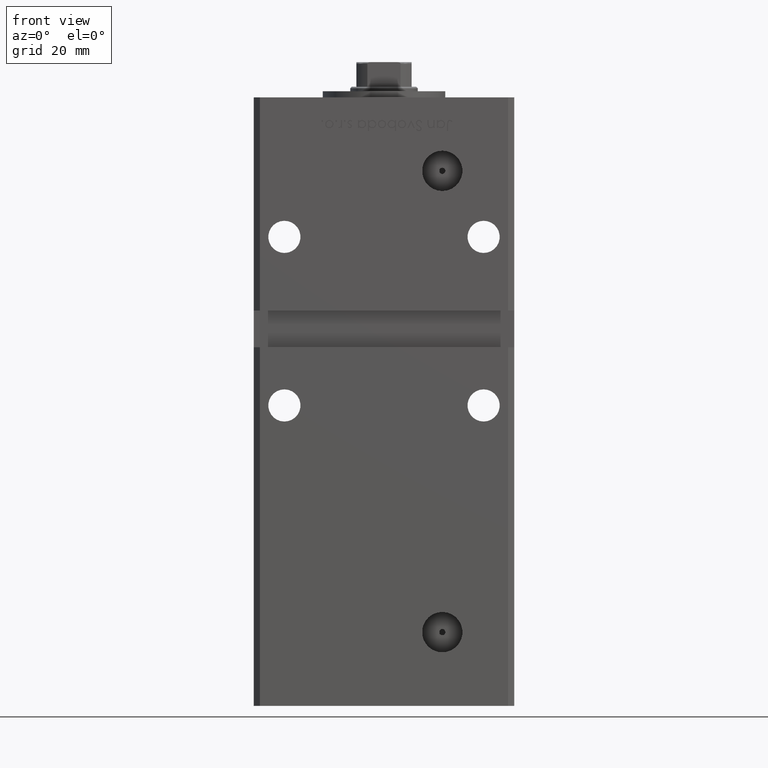
[diagram: clean part render]
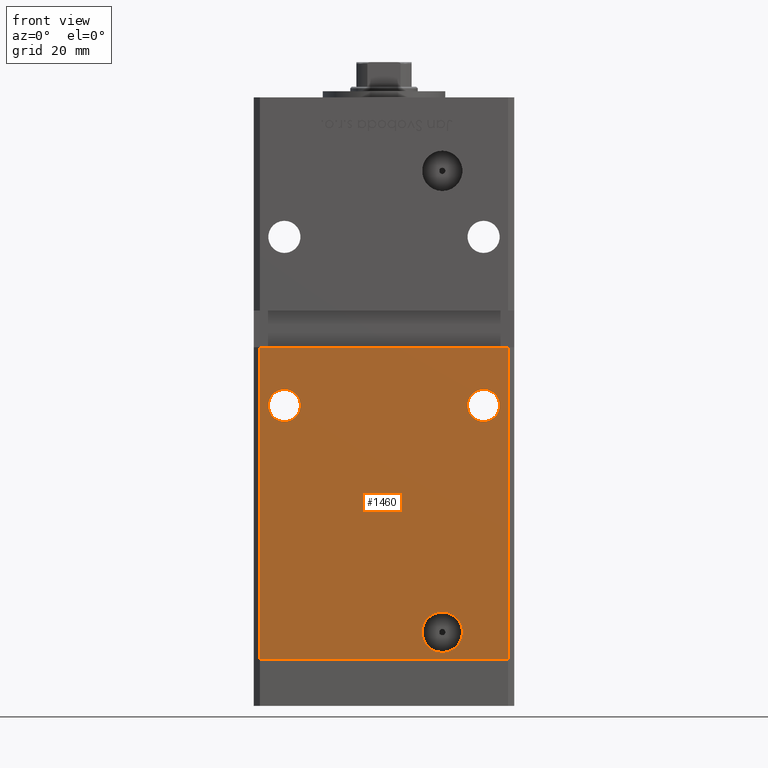
[diagram: same view with one face highlighted and labeled with its STEP entity id]
A machine part, front view. The second image highlights one B-rep face of the part: STEP entity #1460.
In plain terms, the highlighted planar face has unit normal (0, 1, 0).
Its self-contained STEP definition (entity closure, byte-faithful):
#700 = ORIENTED_EDGE ( 'NONE', *, *, #21728, .T. ) ;
#1460 = ADVANCED_FACE ( 'NONE', ( #46306, #50356, #21546, #21802 ), #43056, .F. ) ;
#1717 = AXIS2_PLACEMENT_3D ( 'NONE', #14498, #19318, #7203 ) ;
#2702 = AXIS2_PLACEMENT_3D ( 'NONE', #16466, #47952, #35840 ) ;
#3083 = DIRECTION ( 'NONE',  ( 0.000000000000000000, 1.000000000000000000, 0.000000000000000000 ) ) ;
#3237 = CARTESIAN_POINT ( 'NONE',  ( -40.49999999999998579, -37.50000000000000711, 168.5000000000000000 ) ) ;
#4194 = EDGE_LOOP ( 'NONE', ( #24357, #26755, #700, #8075 ) ) ;
#4233 = VERTEX_POINT ( 'NONE', #8508 ) ;
#4591 = VERTEX_POINT ( 'NONE', #40711 ) ;
#4964 = AXIS2_PLACEMENT_3D ( 'NONE', #52591, #3083, #19236 ) ;
#5800 = EDGE_LOOP ( 'NONE', ( #22836, #30534 ) ) ;
#6203 = DIRECTION ( 'NONE',  ( 0.000000000000000000, 1.000000000000000000, 0.000000000000000000 ) ) ;
#7203 = DIRECTION ( 'NONE',  ( 0.000000000000000000, 0.000000000000000000, 1.000000000000000000 ) ) ;
#7235 = CIRCLE ( 'NONE', #34752, 5.250000000000004441 ) ;
#7658 = VERTEX_POINT ( 'NONE', #15648 ) ;
#8075 = ORIENTED_EDGE ( 'NONE', *, *, #47325, .T. ) ;
#8508 = CARTESIAN_POINT ( 'NONE',  ( -32.50000000000000000, -37.50000000000000711, 88.25000000000002842 ) ) ;
#8854 = CARTESIAN_POINT ( 'NONE',  ( -40.49999999999998579, -37.50000000000000711, 0.000000000000000000 ) ) ;
#9460 = VERTEX_POINT ( 'NONE', #29432 ) ;
#10264 = DIRECTION ( 'NONE',  ( -0.000000000000000000, -0.000000000000000000, -1.000000000000000000 ) ) ;
#10277 = CIRCLE ( 'NONE', #23127, 5.249999999999991118 ) ;
#11157 = VERTEX_POINT ( 'NONE', #11480 ) ;
#11480 = CARTESIAN_POINT ( 'NONE',  ( 18.99999999999998934, -37.50000000000000711, 2.420000000000001261 ) ) ;
#12331 = CIRCLE ( 'NONE', #19207, 6.579999999999998295 ) ;
#13601 = CARTESIAN_POINT ( 'NONE',  ( 32.50000000000000000, -37.50000000000000711, 88.25000000000001421 ) ) ;
#13688 = EDGE_CURVE ( 'NONE', #7658, #4233, #7235, .T. ) ;
#13848 = CIRCLE ( 'NONE', #2702, 6.579999999999998295 ) ;
#14019 = DIRECTION ( 'NONE',  ( 0.000000000000000000, -0.000000000000000000, 1.000000000000000000 ) ) ;
#14026 = VERTEX_POINT ( 'NONE', #21424 ) ;
#14498 = CARTESIAN_POINT ( 'NONE',  ( 32.50000000000000000, -37.50000000000000711, 83.00000000000001421 ) ) ;
#15648 = CARTESIAN_POINT ( 'NONE',  ( -32.50000000000000000, -37.50000000000000711, 77.75000000000001421 ) ) ;
#16466 = CARTESIAN_POINT ( 'NONE',  ( 18.99999999999998934, -37.50000000000000711, 9.000000000000000000 ) ) ;
#16533 = DIRECTION ( 'NONE',  ( 0.000000000000000000, 0.000000000000000000, 1.000000000000000000 ) ) ;
#17102 = ORIENTED_EDGE ( 'NONE', *, *, #26425, .T. ) ;
#17735 = DIRECTION ( 'NONE',  ( 0.000000000000000000, 0.000000000000000000, 1.000000000000000000 ) ) ;
#17803 = CARTESIAN_POINT ( 'NONE',  ( 32.50000000000000000, -37.50000000000000711, 77.75000000000002842 ) ) ;
#18595 = CARTESIAN_POINT ( 'NONE',  ( -40.49999999999998579, -37.50000000000000711, 0.000000000000000000 ) ) ;
#18696 = CARTESIAN_POINT ( 'NONE',  ( 40.49999999999998579, -37.50000000000000711, 168.5000000000000000 ) ) ;
#19207 = AXIS2_PLACEMENT_3D ( 'NONE', #37269, #29193, #32710 ) ;
#19236 = DIRECTION ( 'NONE',  ( 0.000000000000000000, 0.000000000000000000, 1.000000000000000000 ) ) ;
#19318 = DIRECTION ( 'NONE',  ( 0.000000000000000000, 1.000000000000000000, 0.000000000000000000 ) ) ;
#19385 = LINE ( 'NONE', #3237, #21939 ) ;
#20554 = DIRECTION ( 'NONE',  ( 0.000000000000000000, 1.000000000000000000, 0.000000000000000000 ) ) ;
#21424 = CARTESIAN_POINT ( 'NONE',  ( 40.49999999999998579, -37.50000000000000711, 102.0000000000000142 ) ) ;
#21546 = FACE_BOUND ( 'NONE', #5800, .T. ) ;
#21728 = EDGE_CURVE ( 'NONE', #23324, #41255, #19385, .T. ) ;
#21802 = FACE_OUTER_BOUND ( 'NONE', #4194, .T. ) ;
#21939 = VECTOR ( 'NONE', #10264, 1000.000000000000000 ) ;
#22836 = ORIENTED_EDGE ( 'NONE', *, *, #38675, .F. ) ;
#23127 = AXIS2_PLACEMENT_3D ( 'NONE', #37505, #20554, #16533 ) ;
#23324 = VERTEX_POINT ( 'NONE', #41832 ) ;
#24037 = CIRCLE ( 'NONE', #1717, 5.249999999999991118 ) ;
#24357 = ORIENTED_EDGE ( 'NONE', *, *, #37245, .F. ) ;
#25953 = EDGE_LOOP ( 'NONE', ( #17102, #35647 ) ) ;
#26226 = LINE ( 'NONE', #18696, #34431 ) ;
#26425 = EDGE_CURVE ( 'NONE', #4233, #7658, #41010, .T. ) ;
#26755 = ORIENTED_EDGE ( 'NONE', *, *, #26854, .F. ) ;
#26854 = EDGE_CURVE ( 'NONE', #23324, #14026, #43590, .T. ) ;
#27496 = AXIS2_PLACEMENT_3D ( 'NONE', #47364, #6203, #14019 ) ;
#29193 = DIRECTION ( 'NONE',  ( 0.000000000000000000, -1.000000000000000000, 0.000000000000000000 ) ) ;
#29432 = CARTESIAN_POINT ( 'NONE',  ( 40.49999999999998579, -37.50000000000000711, 0.000000000000000000 ) ) ;
#29927 = VERTEX_POINT ( 'NONE', #13601 ) ;
#30534 = ORIENTED_EDGE ( 'NONE', *, *, #50384, .F. ) ;
#30702 = DIRECTION ( 'NONE',  ( 1.000000000000000000, 0.000000000000000000, 0.000000000000000000 ) ) ;
#32710 = DIRECTION ( 'NONE',  ( 0.000000000000000000, 0.000000000000000000, -1.000000000000000000 ) ) ;
#33296 = VECTOR ( 'NONE', #47899, 1000.000000000000000 ) ;
#34371 = EDGE_CURVE ( 'NONE', #29927, #45041, #10277, .T. ) ;
#34431 = VECTOR ( 'NONE', #43694, 1000.000000000000000 ) ;
#34752 = AXIS2_PLACEMENT_3D ( 'NONE', #37907, #42734, #17735 ) ;
#35111 = EDGE_CURVE ( 'NONE', #45041, #29927, #24037, .T. ) ;
#35522 = CARTESIAN_POINT ( 'NONE',  ( -42.49999999999998579, -37.50000000000000711, 102.0000000000000142 ) ) ;
#35647 = ORIENTED_EDGE ( 'NONE', *, *, #13688, .T. ) ;
#35840 = DIRECTION ( 'NONE',  ( 0.000000000000000000, 0.000000000000000000, -1.000000000000000000 ) ) ;
#37047 = EDGE_LOOP ( 'NONE', ( #52101, #50133 ) ) ;
#37245 = EDGE_CURVE ( 'NONE', #14026, #9460, #26226, .T. ) ;
#37269 = CARTESIAN_POINT ( 'NONE',  ( 18.99999999999998934, -37.50000000000000711, 9.000000000000000000 ) ) ;
#37505 = CARTESIAN_POINT ( 'NONE',  ( 32.50000000000000000, -37.50000000000000711, 83.00000000000001421 ) ) ;
#37907 = CARTESIAN_POINT ( 'NONE',  ( -32.50000000000000000, -37.50000000000000711, 83.00000000000001421 ) ) ;
#38675 = EDGE_CURVE ( 'NONE', #11157, #4591, #13848, .T. ) ;
#40711 = CARTESIAN_POINT ( 'NONE',  ( 18.99999999999998934, -37.50000000000000711, 15.57999999999999829 ) ) ;
#41010 = CIRCLE ( 'NONE', #4964, 5.250000000000004441 ) ;
#41255 = VERTEX_POINT ( 'NONE', #8854 ) ;
#41832 = CARTESIAN_POINT ( 'NONE',  ( -40.49999999999998579, -37.50000000000000711, 102.0000000000000142 ) ) ;
#42734 = DIRECTION ( 'NONE',  ( 0.000000000000000000, 1.000000000000000000, 0.000000000000000000 ) ) ;
#43056 = PLANE ( 'NONE',  #27496 ) ;
#43590 = LINE ( 'NONE', #35522, #33296 ) ;
#43694 = DIRECTION ( 'NONE',  ( -0.000000000000000000, -0.000000000000000000, -1.000000000000000000 ) ) ;
#44203 = VECTOR ( 'NONE', #30702, 1000.000000000000000 ) ;
#45041 = VERTEX_POINT ( 'NONE', #17803 ) ;
#46306 = FACE_BOUND ( 'NONE', #25953, .T. ) ;
#47325 = EDGE_CURVE ( 'NONE', #41255, #9460, #50368, .T. ) ;
#47364 = CARTESIAN_POINT ( 'NONE',  ( -40.49999999999998579, -37.50000000000000711, 168.5000000000000000 ) ) ;
#47899 = DIRECTION ( 'NONE',  ( 1.000000000000000000, 0.000000000000000000, 0.000000000000000000 ) ) ;
#47952 = DIRECTION ( 'NONE',  ( 0.000000000000000000, -1.000000000000000000, 0.000000000000000000 ) ) ;
#50133 = ORIENTED_EDGE ( 'NONE', *, *, #35111, .T. ) ;
#50356 = FACE_BOUND ( 'NONE', #37047, .T. ) ;
#50368 = LINE ( 'NONE', #18595, #44203 ) ;
#50384 = EDGE_CURVE ( 'NONE', #4591, #11157, #12331, .T. ) ;
#52101 = ORIENTED_EDGE ( 'NONE', *, *, #34371, .T. ) ;
#52591 = CARTESIAN_POINT ( 'NONE',  ( -32.50000000000000000, -37.50000000000000711, 83.00000000000001421 ) ) ;